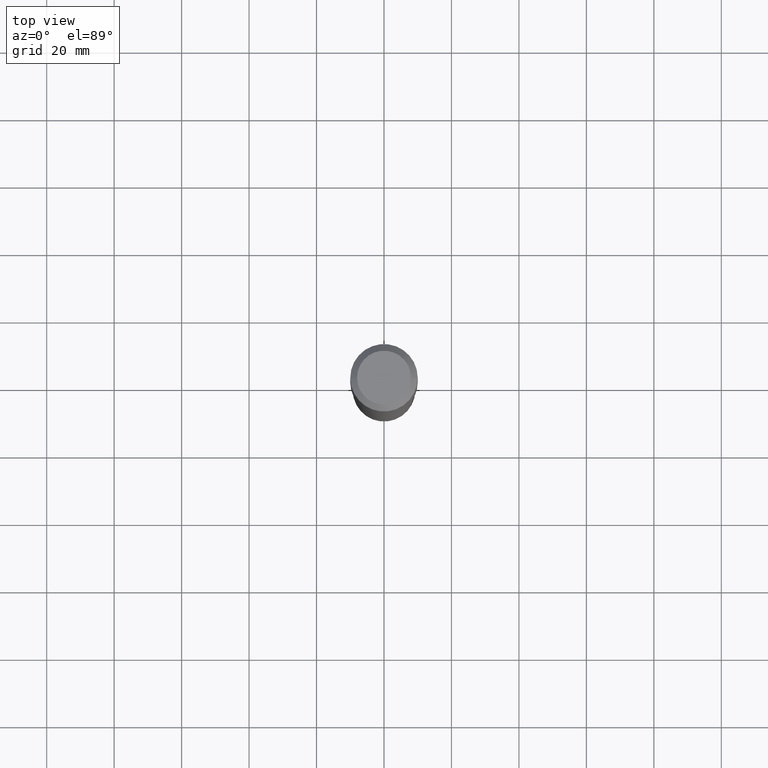
[diagram: clean part render]
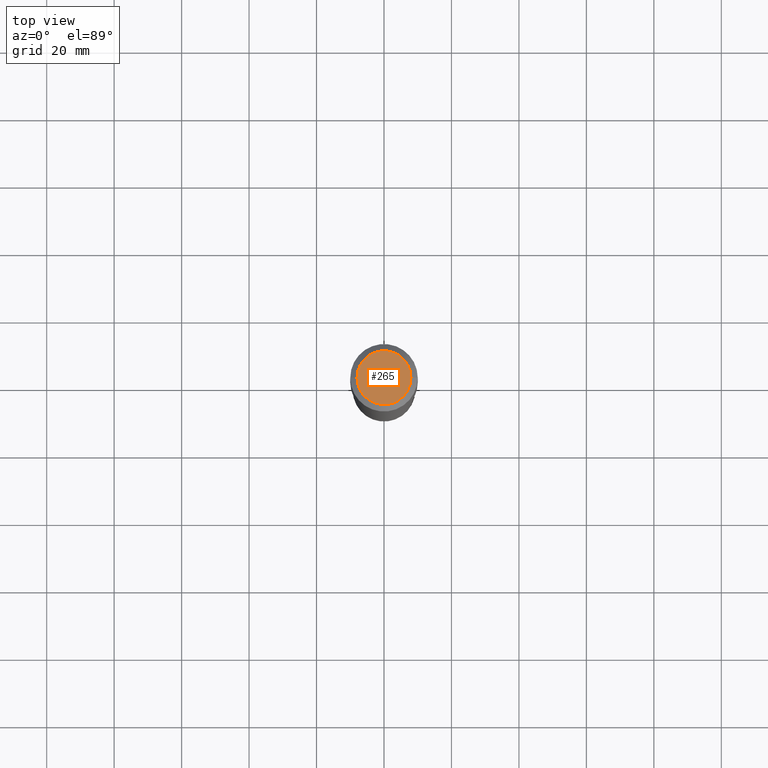
[diagram: same view with one face highlighted and labeled with its STEP entity id]
A machine part, top view. The second image highlights one B-rep face of the part: STEP entity #265.
In plain terms, the highlighted planar face has unit normal (0, -0, -1).
Its self-contained STEP definition (entity closure, byte-faithful):
#26 = FACE_OUTER_BOUND ( 'NONE', #347, .T. ) ;
#28 = CARTESIAN_POINT ( 'NONE',  ( -0.3149600000000000177, 2.336813545274319630E-15, 3.855188123700009542E-18 ) ) ;
#51 = DIRECTION ( 'NONE',  ( 1.000000000000000000, -6.982962677686265922E-15, 4.876223630392693006E-29 ) ) ;
#87 = DIRECTION ( 'NONE',  ( -2.445468806185136597E-29, 3.491481338843145583E-15, 1.000000000000000000 ) ) ;
#92 = CARTESIAN_POINT ( 'NONE',  ( -9.427742298522567634E-47, 1.346031739168368355E-32, 3.855188123715870730E-18 ) ) ;
#96 = ORIENTED_EDGE ( 'NONE', *, *, #306, .T. ) ;
#97 = VERTEX_POINT ( 'NONE', #305 ) ;
#144 = CARTESIAN_POINT ( 'NONE',  ( -9.427742298522567634E-47, 1.346031739168368355E-32, 3.855188123715870730E-18 ) ) ;
#182 = DIRECTION ( 'NONE',  ( -1.000000000000000000, 6.982962677686265922E-15, -4.876176775795935793E-29 ) ) ;
#201 = EDGE_CURVE ( 'NONE', #97, #320, #513, .T. ) ;
#233 = DIRECTION ( 'NONE',  ( 1.000000000000000000, -6.982962677686265922E-15, 4.876223630392693006E-29 ) ) ;
#265 = ADVANCED_FACE ( 'NONE', ( #26 ), #390, .F. ) ;
#272 = DIRECTION ( 'NONE',  ( -2.445468806185136597E-29, 3.491481338843145583E-15, 1.000000000000000000 ) ) ;
#281 = AXIS2_PLACEMENT_3D ( 'NONE', #144, #272, #233 ) ;
#305 = CARTESIAN_POINT ( 'NONE',  ( 0.3149600000000000177, -2.568339875860642773E-15, 3.855188123732540039E-18 ) ) ;
#306 = EDGE_CURVE ( 'NONE', #320, #97, #432, .T. ) ;
#320 = VERTEX_POINT ( 'NONE', #28 ) ;
#347 = EDGE_LOOP ( 'NONE', ( #96, #466 ) ) ;
#366 = AXIS2_PLACEMENT_3D ( 'NONE', #479, #420, #182 ) ;
#390 = PLANE ( 'NONE',  #366 ) ;
#391 = AXIS2_PLACEMENT_3D ( 'NONE', #92, #87, #51 ) ;
#420 = DIRECTION ( 'NONE',  ( 2.438088387897960049E-29, -3.491481338843145188E-15, -1.000000000000000000 ) ) ;
#432 = CIRCLE ( 'NONE', #281, 0.3149600000000000177 ) ;
#466 = ORIENTED_EDGE ( 'NONE', *, *, #201, .T. ) ;
#479 = CARTESIAN_POINT ( 'NONE',  ( -4.713871149261283817E-47, 6.730158695841841775E-33, 1.927594061857935365E-18 ) ) ;
#513 = CIRCLE ( 'NONE', #391, 0.3149600000000000177 ) ;